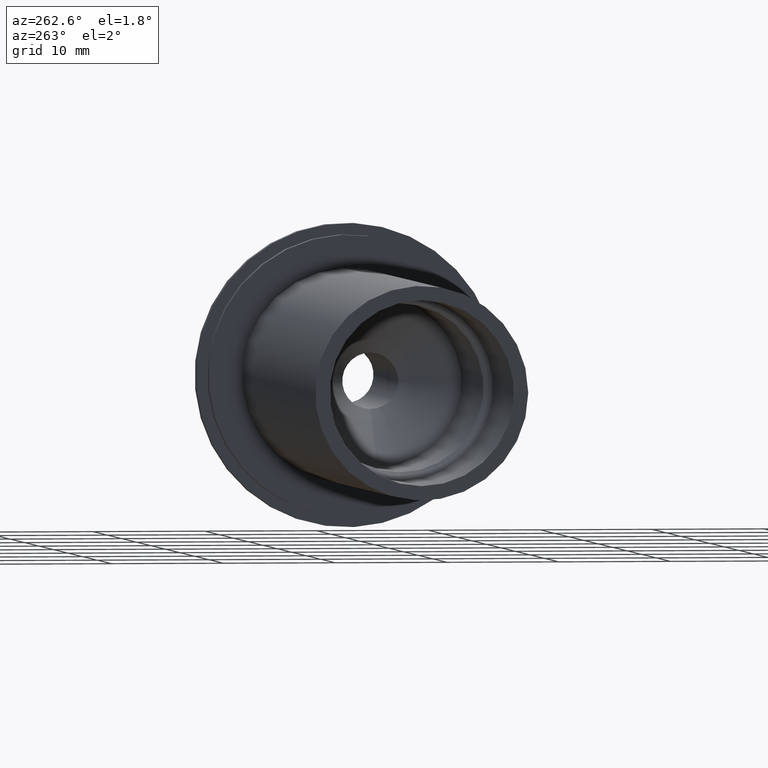
[diagram: clean part render]
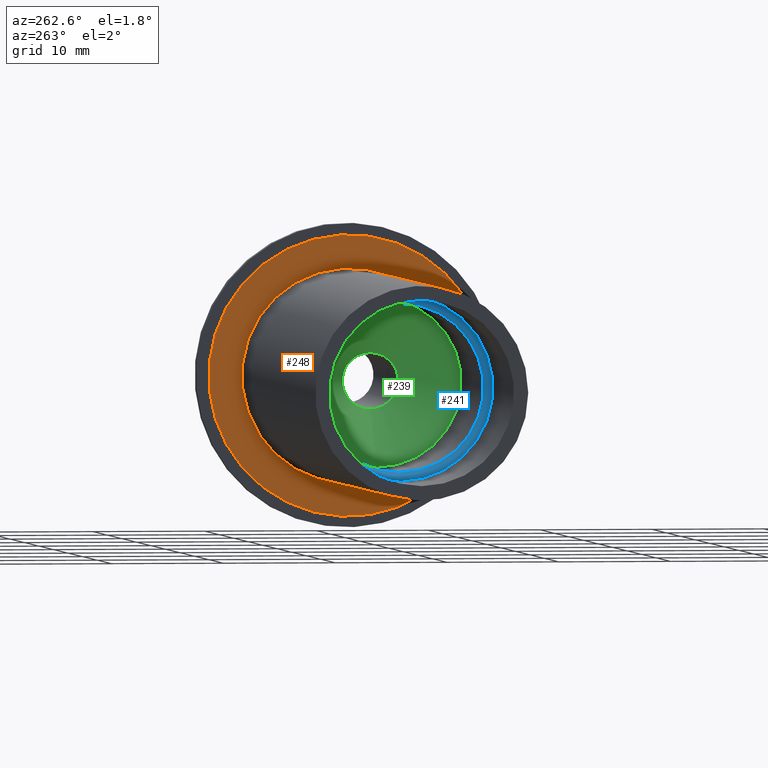
[diagram: same view with three faces highlighted in distinct colors, each labeled with its STEP entity id]
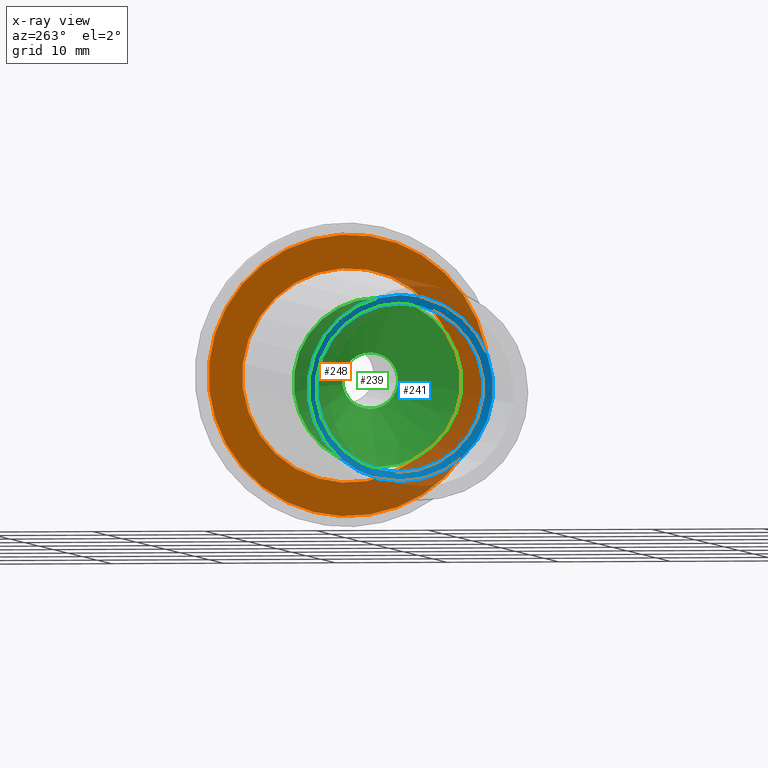
[diagram: x-ray of the same camera — body ghosted, the three highlighted faces saturated]
A machine part, auxiliary view with three faces highlighted in distinct colors.
The next image is the same camera in x-ray (body ghosted, the three faces saturated) — at least one of them is partly hidden behind the body in this view.
Their STEP definitions:

[orange] entity #248 — the highlighted planar face has unit normal (-1, 0, 0).
#89=FACE_BOUND('',#122,.T.);
#93=PLANE('',#295);
#106=FACE_OUTER_BOUND('',#121,.T.);
#121=EDGE_LOOP('',(#226));
#122=EDGE_LOOP('',(#227));
#151=CIRCLE('',#294,9.525);
#152=CIRCLE('',#296,12.5);
#167=VERTEX_POINT('',#445);
#168=VERTEX_POINT('',#449);
#186=EDGE_CURVE('',#167,#167,#151,.T.);
#188=EDGE_CURVE('',#168,#168,#152,.T.);
#226=ORIENTED_EDGE('',*,*,#188,.F.);
#227=ORIENTED_EDGE('',*,*,#186,.T.);
#248=ADVANCED_FACE('',(#106,#89),#93,.T.);
#294=AXIS2_PLACEMENT_3D('',#446,#364,#365);
#295=AXIS2_PLACEMENT_3D('',#448,#367,#368);
#296=AXIS2_PLACEMENT_3D('',#450,#369,#370);
#364=DIRECTION('center_axis',(1.,0.,0.));
#365=DIRECTION('ref_axis',(0.,0.,-1.));
#367=DIRECTION('center_axis',(-1.,0.,0.));
#368=DIRECTION('ref_axis',(0.,0.,1.));
#369=DIRECTION('center_axis',(1.,0.,0.));
#370=DIRECTION('ref_axis',(0.,0.,-1.));
#445=CARTESIAN_POINT('',(-2.,-9.525,-1.16647607618785E-15));
#446=CARTESIAN_POINT('Origin',(-2.,0.,0.));
#448=CARTESIAN_POINT('Origin',(-2.,12.5,0.));
#449=CARTESIAN_POINT('',(-2.,-12.5,-1.53080849893419E-15));
#450=CARTESIAN_POINT('Origin',(-2.,0.,0.));

[blue] entity #241 — the highlighted conical surface has half-angle 45 deg.
#95=CONICAL_SURFACE('',#281,4.125,0.785398163397448);
#99=FACE_OUTER_BOUND('',#111,.T.);
#111=EDGE_LOOP('',(#204,#205,#206,#207));
#127=LINE('',#426,#135);
#135=VECTOR('',#339,4.125);
#144=CIRCLE('',#280,7.5);
#145=CIRCLE('',#282,8.25);
#160=VERTEX_POINT('',#420);
#161=VERTEX_POINT('',#424);
#175=EDGE_CURVE('',#160,#160,#144,.T.);
#177=EDGE_CURVE('',#161,#161,#145,.T.);
#178=EDGE_CURVE('',#161,#160,#127,.T.);
#204=ORIENTED_EDGE('',*,*,#177,.T.);
#205=ORIENTED_EDGE('',*,*,#178,.T.);
#206=ORIENTED_EDGE('',*,*,#175,.T.);
#207=ORIENTED_EDGE('',*,*,#178,.F.);
#241=ADVANCED_FACE('',(#99),#95,.F.);
#280=AXIS2_PLACEMENT_3D('',#421,#332,#333);
#281=AXIS2_PLACEMENT_3D('',#423,#335,#336);
#282=AXIS2_PLACEMENT_3D('',#425,#337,#338);
#332=DIRECTION('center_axis',(1.,0.,0.));
#333=DIRECTION('ref_axis',(0.,0.,1.));
#335=DIRECTION('center_axis',(-1.,0.,0.));
#336=DIRECTION('ref_axis',(0.,0.,1.));
#337=DIRECTION('center_axis',(-1.,0.,0.));
#338=DIRECTION('ref_axis',(0.,0.,1.));
#339=DIRECTION('',(0.707106781186548,8.65956056235493E-17,0.707106781186547));
#420=CARTESIAN_POINT('',(-37.25,9.18485099360515E-16,-7.5));
#421=CARTESIAN_POINT('Origin',(-37.25,0.,0.));
#423=CARTESIAN_POINT('Origin',(-33.875,0.,0.));
#424=CARTESIAN_POINT('',(-38.,-1.01033360929657E-15,-8.25));
#425=CARTESIAN_POINT('Origin',(-38.,0.,0.));
#426=CARTESIAN_POINT('',(-33.875,-5.05166804648283E-16,-4.125));

[green] entity #239 — the highlighted conical surface has half-angle 45 deg.
#94=CONICAL_SURFACE('',#277,3.75,0.785398163397448);
#97=FACE_OUTER_BOUND('',#109,.T.);
#109=EDGE_LOOP('',(#195,#196,#197,#198,#199));
#125=LINE('',#418,#133);
#133=VECTOR('',#329,3.75);
#141=CIRCLE('',#275,2.5);
#142=CIRCLE('',#276,2.5);
#143=CIRCLE('',#278,7.5);
#157=VERTEX_POINT('',#410);
#158=VERTEX_POINT('',#412);
#159=VERTEX_POINT('',#416);
#171=EDGE_CURVE('',#158,#157,#141,.T.);
#172=EDGE_CURVE('',#157,#158,#142,.T.);
#173=EDGE_CURVE('',#159,#159,#143,.T.);
#174=EDGE_CURVE('',#159,#158,#125,.T.);
#195=ORIENTED_EDGE('',*,*,#173,.T.);
#196=ORIENTED_EDGE('',*,*,#174,.T.);
#197=ORIENTED_EDGE('',*,*,#171,.T.);
#198=ORIENTED_EDGE('',*,*,#172,.T.);
#199=ORIENTED_EDGE('',*,*,#174,.F.);
#239=ADVANCED_FACE('',(#97),#94,.F.);
#275=AXIS2_PLACEMENT_3D('',#413,#321,#322);
#276=AXIS2_PLACEMENT_3D('',#414,#323,#324);
#277=AXIS2_PLACEMENT_3D('',#415,#325,#326);
#278=AXIS2_PLACEMENT_3D('',#417,#327,#328);
#321=DIRECTION('center_axis',(1.,0.,0.));
#322=DIRECTION('ref_axis',(0.,0.,-1.));
#323=DIRECTION('center_axis',(1.,0.,0.));
#324=DIRECTION('ref_axis',(0.,0.,-1.));
#325=DIRECTION('center_axis',(-1.,0.,0.));
#326=DIRECTION('ref_axis',(0.,0.,1.));
#327=DIRECTION('center_axis',(-1.,0.,0.));
#328=DIRECTION('ref_axis',(0.,0.,1.));
#329=DIRECTION('',(0.707106781186548,8.65956056235493E-17,0.707106781186547));
#410=CARTESIAN_POINT('',(-17.,-3.06161699786838E-16,2.5));
#412=CARTESIAN_POINT('',(-17.,-3.06161699786838E-16,-2.5));
#413=CARTESIAN_POINT('Origin',(-17.,0.,0.));
#414=CARTESIAN_POINT('Origin',(-17.,0.,0.));
#415=CARTESIAN_POINT('Origin',(-18.25,0.,0.));
#416=CARTESIAN_POINT('',(-22.,-9.18485099360515E-16,-7.5));
#417=CARTESIAN_POINT('Origin',(-22.,0.,0.));
#418=CARTESIAN_POINT('',(-18.25,-4.59242549680257E-16,-3.75));